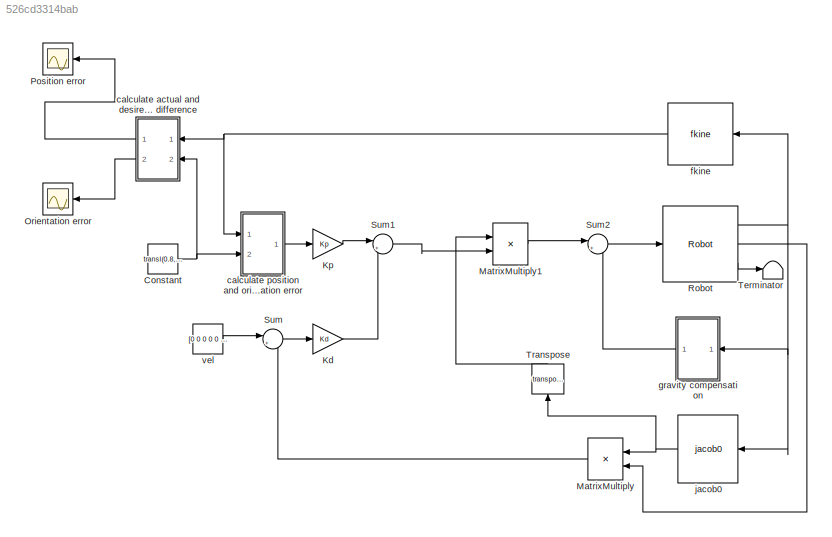
MODEL slx_526cd3314bab
KIND model
CONFIG AbsTol = auto
CONFIG EnableMultiTasking = off
CONFIG FixedStep = auto
CONFIG MaxStep = auto
CONFIG MinStep = auto
CONFIG RelTol = 1e-3
CONFIG SampleTimeConstraint = Unconstrained
CONFIG Solver = VariableStepAuto
CONFIG SolverName = VariableStepAuto
CONFIG StartTime = 0.0
CONFIG StopTime = 5.0
BLOCK [Constant] Constant
  Value = transl(0.8, 0.1, 0.0) * troty(pi/2)
BLOCK [Gain] Kd
  Gain = Kd
BLOCK [Gain] Kp
  Gain = Kp
BLOCK [Product] MatrixMultiply
  Multiplication = Matrix(*)
  Ports = [2, 1]
BLOCK [Product] MatrixMultiply1
  Multiplication = Matrix(*)
  Ports = [2, 1]
BLOCK [Scope] Orientation error
  Floating = off
  NumInputPorts = 1
  Ports = [1]
  ScopeSpecificationString = Simulink.scopes.TimeScopeBlockCfg('CurrentConfiguration', extmgr.ConfigurationSet(extmgr.Configuration('Core','General UI',true),extmgr.Configuration('Core','Source UI',true),extmgr.Configuration('Sources','WiredSimulink',true,'DataLoggingVariableName','ScopeData1'),extmgr.Configuration('Visuals','Time Domain',true,'SerializedDisplays',{struct('MinYLimReal','-0.24576','MaxYLimReal','1.77264','YLab...<+1538ch>
BLOCK [Scope] Position error
  Floating = off
  NumInputPorts = 1
  Ports = [1]
  ScopeSpecificationString = Simulink.scopes.TimeScopeBlockCfg('CurrentConfiguration', extmgr.ConfigurationSet(extmgr.Configuration('Core','General UI',true),extmgr.Configuration('Core','Source UI',true),extmgr.Configuration('Sources','WiredSimulink',true),extmgr.Configuration('Visuals','Time Domain',true,'SerializedDisplays',{struct('MinYLimReal','-0.52926','MaxYLimReal','0.44536','YLabelReal','','MinYLimMag','0.00000','MaxY...<+1499ch>
BLOCK [Reference] Robot  REF=roblocks/Arm/Robot  (lib defined in mdl_2a292b13c81b, mdl_69400f8cfe22, +12 more)
  Ports = [1, 3]
  SourceBlock = roblocks/Arm/Robot
BLOCK [Sum] Sum
  Inputs = |+-
  Ports = [2, 1]
BLOCK [Sum] Sum1
  Inputs = |++
  Ports = [2, 1]
BLOCK [Sum] Sum2
  Inputs = |++
  Ports = [2, 1]
BLOCK [Terminator] Terminator
BLOCK [Math] Transpose
  NameLocation = right
  Operator = transpose
  Ports = [1, 1]
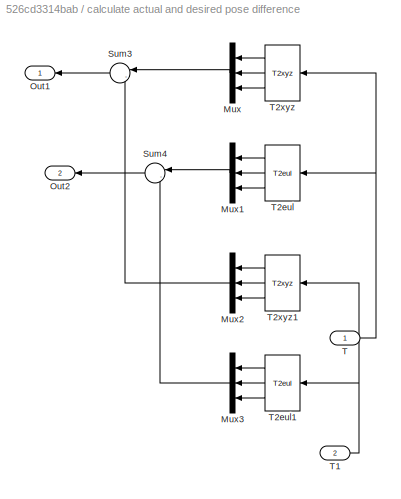
BLOCK [SubSystem] calculate actual and desired pose difference
  NameLocation = top
  Ports = [2, 2]
  RequestExecContextInheritance = off
BLOCK [Mux] calculate actual and desired pose difference/Mux
  DisplayOption = bar
  Inputs = 3
  Ports = [3, 1]
BLOCK [Mux] calculate actual and desired pose difference/Mux1
  DisplayOption = bar
  Inputs = 3
  Ports = [3, 1]
BLOCK [Mux] calculate actual and desired pose difference/Mux2
  DisplayOption = bar
  Inputs = 3
  Ports = [3, 1]
BLOCK [Mux] calculate actual and desired pose difference/Mux3
  DisplayOption = bar
  Inputs = 3
  Ports = [3, 1]
BLOCK [Outport] calculate actual and desired pose difference/Out1
BLOCK [Outport] calculate actual and desired pose difference/Out2
  Port = 2
BLOCK [Sum] calculate actual and desired pose difference/Sum3
  Inputs = |-+
  Ports = [2, 1]
BLOCK [Sum] calculate actual and desired pose difference/Sum4
  Inputs = |-+
  Ports = [2, 1]
BLOCK [Inport] calculate actual and desired pose difference/T
BLOCK [Inport] calculate actual and desired pose difference/T1
  Port = 2
BLOCK [Reference] calculate actual and desired pose difference/T2eul  REF=roblocks/Toolbox/T2eul  (lib defined in mdl_2a292b13c81b, mdl_69400f8cfe22, +12 more)
  Ports = [1, 3]
  SourceBlock = roblocks/Toolbox/T2eul
BLOCK [Reference] calculate actual and desired pose difference/T2eul1  REF=roblocks/Toolbox/T2eul  (lib defined in mdl_2a292b13c81b, mdl_69400f8cfe22, +12 more)
  Ports = [1, 3]
  SourceBlock = roblocks/Toolbox/T2eul
BLOCK [Reference] calculate actual and desired pose difference/T2xyz  REF=roblocks/Toolbox/T2xyz  (lib defined in mdl_2a292b13c81b, mdl_69400f8cfe22, +12 more)
  Ports = [1, 3]
  SourceBlock = roblocks/Toolbox/T2xyz
BLOCK [Reference] calculate actual and desired pose difference/T2xyz1  REF=roblocks/Toolbox/T2xyz  (lib defined in mdl_2a292b13c81b, mdl_69400f8cfe22, +12 more)
  Ports = [1, 3]
  SourceBlock = roblocks/Toolbox/T2xyz
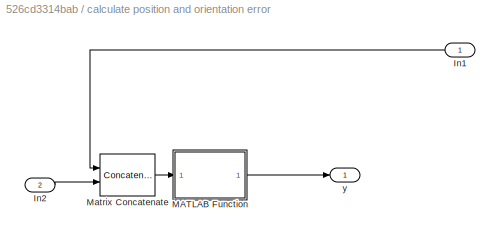
BLOCK [SubSystem] calculate position and orientation error
  Ports = [2, 1]
  RequestExecContextInheritance = off
BLOCK [Inport] calculate position and orientation error/In1
BLOCK [Inport] calculate position and orientation error/In2
  Port = 2
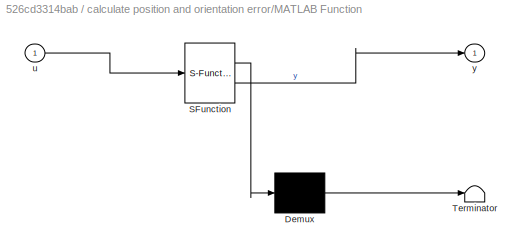
BLOCK [SubSystem] calculate position and orientation error/MATLAB Function
  ErrorFcn = Stateflow.Translate.translate
  PermitHierarchicalResolution = ExplicitOnly
  Ports = [1, 1]
  RequestExecContextInheritance = off
  SFBlockType = MATLAB Function
  TreatAsAtomicUnit = on
BLOCK [Demux] calculate position and orientation error/MATLAB Function/ Demux 
  Outputs = 1
  Ports = [1, 1]
BLOCK [S-Function] calculate position and orientation error/MATLAB Function/ SFunction 
  EnableBusSupport = on
  FunctionName = sf_sfun
  PortCounts = [1 2]
  Ports = [1, 2]
  SFcnIsStateOwnerBlock = off
  SFunctionDeploymentMode = off
  Tag = Stateflow S-Function 2
BLOCK [Terminator] calculate position and orientation error/MATLAB Function/ Terminator 
BLOCK [Inport] calculate position and orientation error/MATLAB Function/u
BLOCK [Outport] calculate position and orientation error/MATLAB Function/y
BLOCK [Concatenate] calculate position and orientation error/Matrix Concatenate
  ConcatenateDimension = 2
  Mode = Multidimensional array
  Ports = [2, 1]
BLOCK [Outport] calculate position and orientation error/y
BLOCK [Reference] fkine  REF=roblocks/Arm/fkine  (lib defined in mdl_2a292b13c81b, mdl_69400f8cfe22, +12 more)
  Ports = [1, 1]
  SourceBlock = roblocks/Arm/fkine
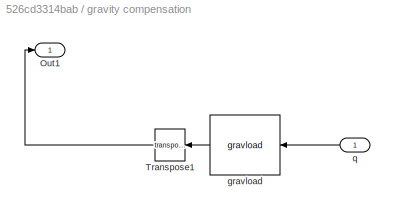
BLOCK [SubSystem] gravity compensation
  Ports = [1, 1]
  RequestExecContextInheritance = off
BLOCK [Outport] gravity compensation/Out1
BLOCK [Math] gravity compensation/Transpose1
  Operator = transpose
  Ports = [1, 1]
BLOCK [Reference] gravity compensation/gravload  REF=roblocks/Arm/gravload  (lib defined in mdl_2a292b13c81b, mdl_69400f8cfe22, +12 more)
  Ports = [1, 1]
  SourceBlock = roblocks/Arm/gravload
BLOCK [Inport] gravity compensation/q
BLOCK [Reference] jacob0   REF=roblocks/Arm/jacob0  (lib defined in mdl_2a292b13c81b, mdl_69400f8cfe22, +12 more)

  Ports = [1, 1]
  SourceBlock = roblocks/Arm/jacob0
BLOCK [Constant] vel
  Value = [0 0 0 0 0 0]
NET Constant:1 -> calculate actual and desired pose difference:2, calculate position and orientation error:2
LINE Kd:1 -> Sum1:2
LINE Kp:1 -> Sum1:1
LINE MatrixMultiply1:1 -> Sum2:1
LINE MatrixMultiply:1 -> Sum:2
NET Robot:1 -> fkine:1, gravity compensation:1, jacob0 :1
LINE Robot:2 -> MatrixMultiply:2
LINE Robot:3 -> Terminator:1
LINE Sum1:1 -> MatrixMultiply1:2
LINE Sum2:1 -> Robot:1
LINE Sum:1 -> Kd:1
LINE Transpose:1 -> MatrixMultiply1:1
LINE calculate actual and desired pose difference/Mux1:1 -> calculate actual and desired pose difference/Sum4:1
LINE calculate actual and desired pose difference/Mux2:1 -> calculate actual and desired pose difference/Sum3:2
LINE calculate actual and desired pose difference/Mux3:1 -> calculate actual and desired pose difference/Sum4:2
LINE calculate actual and desired pose difference/Mux:1 -> calculate actual and desired pose difference/Sum3:1
LINE calculate actual and desired pose difference/Sum3:1 -> calculate actual and desired pose difference/Out1:1
LINE calculate actual and desired pose difference/Sum4:1 -> calculate actual and desired pose difference/Out2:1
NET calculate actual and desired pose difference/T1:1 -> calculate actual and desired pose difference/T2eul1:1, calculate actual and desired pose difference/T2xyz1:1
LINE calculate actual and desired pose difference/T2eul1:1 -> calculate actual and desired pose difference/Mux3:1
LINE calculate actual and desired pose difference/T2eul1:2 -> calculate actual and desired pose difference/Mux3:2
LINE calculate actual and desired pose difference/T2eul1:3 -> calculate actual and desired pose difference/Mux3:3
LINE calculate actual and desired pose difference/T2eul:1 -> calculate actual and desired pose difference/Mux1:1
LINE calculate actual and desired pose difference/T2eul:2 -> calculate actual and desired pose difference/Mux1:2
LINE calculate actual and desired pose difference/T2eul:3 -> calculate actual and desired pose difference/Mux1:3
LINE calculate actual and desired pose difference/T2xyz1:1 -> calculate actual and desired pose difference/Mux2:1
LINE calculate actual and desired pose difference/T2xyz1:2 -> calculate actual and desired pose difference/Mux2:2
LINE calculate actual and desired pose difference/T2xyz1:3 -> calculate actual and desired pose difference/Mux2:3
LINE calculate actual and desired pose difference/T2xyz:1 -> calculate actual and desired pose difference/Mux:1
LINE calculate actual and desired pose difference/T2xyz:2 -> calculate actual and desired pose difference/Mux:2
LINE calculate actual and desired pose difference/T2xyz:3 -> calculate actual and desired pose difference/Mux:3
NET calculate actual and desired pose difference/T:1 -> calculate actual and desired pose difference/T2eul:1, calculate actual and desired pose difference/T2xyz:1
LINE calculate actual and desired pose difference:1 -> Position error:1
LINE calculate actual and desired pose difference:2 -> Orientation error:1
LINE calculate position and orientation error/In1:1 -> calculate position and orientation error/Matrix Concatenate:1
LINE calculate position and orientation error/In2:1 -> calculate position and orientation error/Matrix Concatenate:2
LINE calculate position and orientation error/MATLAB Function:1 -> calculate position and orientation error/y:1
LINE calculate position and orientation error/Matrix Concatenate:1 -> calculate position and orientation error/MATLAB Function:1
LINE calculate position and orientation error:1 -> Kp:1
NET fkine:1 -> calculate actual and desired pose difference:1, calculate position and orientation error:1
LINE gravity compensation/Transpose1:1 -> gravity compensation/Out1:1
LINE gravity compensation/gravload:1 -> gravity compensation/Transpose1:1
LINE gravity compensation/q:1 -> gravity compensation/gravload:1
LINE gravity compensation:1 -> Sum2:2
NET jacob0 :1 -> MatrixMultiply:1, Transpose:1
LINE vel:1 -> Sum:1
note: NET lines group one-source signal fan-out (src -> all destinations, sorted); 1:1 wires keep LINE
CHART calculate position and orientation error/MATLAB Function states=1 transitions=1
  STATE_LABEL 'eML_blk_kernel()'
  STATE_LABEL 'SCRIPT:\nfunction y = fcn(u)\n\nT  = u(1:4, 1:4); % get feedback transformation matrix\nTd = u(1:4, 5:8); % get desired transformation matrix\n\n% extract translation parts\np  = T(1:3, 4);\npd = Td(1:3, 4);\n\n% extract rotation parts\nn = T(1:3, 1);\no = T(1:3, 2);\na = T(1:3, 3);\n\nnd = Td(1:3, 1);\nod = Td(1:3, 2);\nad = Td(1:3, 3);\n\n% Calculate linear position error\nep = pd - p;\n\n% Calculate orientation erro...<+84ch>'
CHART  states=0 transitions=0
